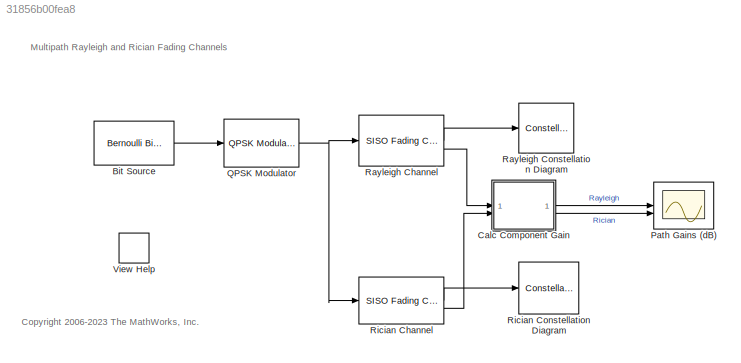
MODEL slx_31856b00fea8
KIND model
CONFIG AbsTol = auto
CONFIG EnableMultiTasking = on
CONFIG FixedStep = auto
CONFIG MaxStep = auto
CONFIG MinStep = auto
CONFIG PreLoadFcn = bitRate = 10e6;\nbitsPerFrame = 2000;\nmaxDopplerShift = 200;\ndelayVector = [0 1 2 4]*2/bitRate;\ngainVector = [0:3]*(-3);\nLOSDopplerShift = 100;\nKFactor = 10;
CONFIG RelTol = 1e-3
CONFIG SampleTimeConstraint = Unconstrained
CONFIG SolverName = FixedStepDiscrete
CONFIG StartTime = 0.0
CONFIG StopTime = 3
BLOCK [Reference] Bit Source  REF=commrandsrc3/Bernoulli Binary
Generator
  SourceBlock = commrandsrc3/Bernoulli Binary\nGenerator
  SourceType = Bernoulli Binary Generator
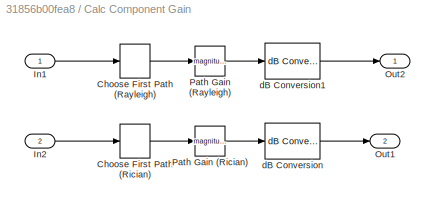
BLOCK [SubSystem] Calc Component Gain
BLOCK [Math] Calc Component Gain/ Path Gain (Rayleigh)
  Operator = magnitude^2
  SignedPower = on
BLOCK [Selector] Calc Component Gain/Choose First Path (Rayleigh)
  IndexOptions = Select all,Index vector (dialog)
  Indices = [1 3],1
  InputPortWidth = 3
  NumberOfDimensions = 2
  OutputSizes = 1,1
BLOCK [Selector] Calc Component Gain/Choose First Path (Rician)
  IndexOptions = Select all,Index vector (dialog)
  Indices = [1 3],1
  InputPortWidth = 3
  NumberOfDimensions = 2
  OutputSizes = 1,1
BLOCK [Inport] Calc Component Gain/In1
BLOCK [Inport] Calc Component Gain/In2
  Port = 2
BLOCK [Outport] Calc Component Gain/Out1
  Port = 2
  VectorParamsAs1DForOutWhenUnconnected = off
BLOCK [Outport] Calc Component Gain/Out2
  VectorParamsAs1DForOutWhenUnconnected = off
BLOCK [Math] Calc Component Gain/Path Gain (Rician)
  Operator = magnitude^2
  SignedPower = on
BLOCK [Reference] Calc Component Gain/dB Conversion  REF=dspmathops/dB Conversion
  SourceBlock = dspmathops/dB Conversion
  SourceType = dB Conversion
BLOCK [Reference] Calc Component Gain/dB Conversion1  REF=dspmathops/dB Conversion
  SourceBlock = dspmathops/dB Conversion
  SourceType = dB Conversion
BLOCK [Scope] Path Gains (dB)
  ActiveDisplayYMaximum = 1.24025
  ActiveDisplayYMinimum = -5.42888
  DefaultConfigurationName = spbscopes.TimeScopeBlockCfg
  Floating = off
  FrameBasedProcessingString = Columns as channels (frame based)
  GraphicalSettings = {"GraphicalSettings":{"LegacySettings":true,"Style":{"Style":{"AxesColor":"[0 0 0]","BackgroundColor":"[0.156862745098039 0.156862745098039 0.156862745098039]","ChannelNames":[""],"ColorOrder":"[1 1 0.0666666666666667;0.0745098039215686 0.623529411764706 1;1 0.411764705882353 0.16078431372549;0.392156862745098 0.831372549019608 0.0745098039215686;0.717647058823529 0.274509803921569 1;0.05882352941...<+422ch>
  MaximizeAxes = Auto
  MultipleDisplayCache = [{"MaxYLimMag":5.42888,"MaxYLimReal":1.24025,"MinYLimMag":0,"MinYLimReal":-5.42888,"PlotAsMagnitudePhase":false,"ShowGrid":true,"ShowLegend":true,"Title":"","YLabel":"Gain (dB)"}]
  NumInputPorts = 2
  ShowLegend = on
  ShowTimeAxisLabel = on
  TimeAxisLabels = All
  TimeSpan = bitsPerFrame/bitRate
  TimeUnits = Metric (based on Time Span)
  UserDataPersistent = on
  WasSavedAsWebScope = on
  WindowPosition = [709 193 560 420]
  YLabel = Gain (dB)
BLOCK [Reference] QPSK Modulator  REF=commdigbbndpm3/QPSK
Modulator
Baseband
  SourceBlock = commdigbbndpm3/QPSK\nModulator\nBaseband
  SourceType = QPSK Modulator Baseband
BLOCK [Reference] Rayleigh Channel  REF=commchan3/SISO Fading Channel
  SourceBlock = commchan3/SISO Fading Channel
  SourceType = SISO Fading Channel
BLOCK [ConstellationDiagram] Rayleigh Constellation Diagram
  AxesLimits = [-3.3 3.315]
  DefaultConfigurationName = comm.scopes.ConstellationDiagramBlockCfg
  GraphicalSettings = {"Style":{"BackgroundColor":[0.1568627450980392,0.1568627450980392,0.1568627450980392],"AxesColor":[0,0,0],"LabelsColor":[0.6862745098039216,0.6862745098039216,0.6862745098039216],"LineStyle":["NONE","NONE"],"LineColor":[[1,1,0.06666666666666667],[1,0,0]],"LineWidth":[1,1],"Marker":[".","+"],"IsRefLine":[false,true],"FontSize":"10"}}
  OpenAtSimulationStart = off
  ScopeFrameLocation = window
  SymbolsToDisplay = bitsPerFrame/2
  SymbolsToDisplaySource = Property
  Tag = ScatterPlot
  Title = Received signal after Rayleigh fading
  WasSavedAsWebScope = on
  WindowPosition = [131.000000,255.000000,480.000000,480.000000,]
  XLimits = [-3.3 3.315]
  YLimits = [-3.3 3.315]
BLOCK [Reference] Rician Channel  REF=commchan3/SISO Fading Channel
  SourceBlock = commchan3/SISO Fading Channel
  SourceType = SISO Fading Channel
BLOCK [ConstellationDiagram] Rician Constellation Diagram
  AxesLimits = [-1.5 1.5]
  DefaultConfigurationName = comm.scopes.ConstellationDiagramBlockCfg
  GraphicalSettings = {"GraphicalSettings":{"Style":{"AxesProperties":"struct","Box":"on","Color":"[0 0 0]","CurrentConfiguration":"extmgr.ConfigurationSet","FontName":"Helvetica","FontSize":"10","FontUnits":"points","FontWeight":"normal","LineColor":"b","MaxXLim":"1.5","MaxYLim":"1.5","MinXLim":"-1.5","MinYLim":"-1.5","OpenScopeAtSimStart":"false","Position":"[576 480 480 480]","Version":"2020b","XColor":"[0.686274509...<+464ch>
  OpenAtSimulationStart = off
  ScopeFrameLocation = window
  SymbolsToDisplay = bitsPerFrame/2
  SymbolsToDisplaySource = Property
  Tag = ScatterPlot
  Title = Received signal after Rician fading
  WasSavedAsWebScope = on
  WindowPosition = [576.000000,480.000000,480.000000,480.000000,]
  XLimits = [-1.5 1.5]
  YLimits = [-1.5 1.5]
BLOCK [CustomCallbackButton] View Help
  Configuration = {"components":[{"name":"BackgroundImageComponent","settings":{"image":{"size":[0,0],"src":"default","srcOrientation":"Right"},"position":[0,0,1,1]}},{"name":"ButtonStateComponent","settings":{"buttonType":"momentary","clickFcn":"showExample('comm\/MultipathFadingChannelSimulinkExample')","onValue":1,"position":[0,0,1,1],"pressDelay":"500","pressFcn":"","repeatInterval":"0","states":[{"horizontalAl...<+1765ch>
  CustomBackgroundColor = {"color":[0.9568627451,0.9568627451,0.9568627451],"show":true}
ANNOTATION (root): <copyright redacted>
ANNOTATION (root): Multipath Rayleigh and Rician Fading Channels
LINE Bit Source:1 -> QPSK Modulator:1
LINE Calc Component Gain/ Path Gain (Rayleigh):1 -> Calc Component Gain/dB Conversion1:1
LINE Calc Component Gain/Choose First Path (Rayleigh):1 -> Calc Component Gain/ Path Gain (Rayleigh):1
LINE Calc Component Gain/Choose First Path (Rician):1 -> Calc Component Gain/Path Gain (Rician):1
LINE Calc Component Gain/In1:1 -> Calc Component Gain/Choose First Path (Rayleigh):1
LINE Calc Component Gain/In2:1 -> Calc Component Gain/Choose First Path (Rician):1
LINE Calc Component Gain/Path Gain (Rician):1 -> Calc Component Gain/dB Conversion:1
LINE Calc Component Gain/dB Conversion1:1 -> Calc Component Gain/Out2:1
LINE Calc Component Gain/dB Conversion:1 -> Calc Component Gain/Out1:1
LINE Calc Component Gain:1 -> Path Gains (dB):1
LINE Calc Component Gain:2 -> Path Gains (dB):2
NET QPSK Modulator:1 -> Rayleigh Channel:1, Rician Channel:1
LINE Rayleigh Channel:1 -> Rayleigh Constellation Diagram:1
LINE Rayleigh Channel:2 -> Calc Component Gain:1
LINE Rician Channel:1 -> Rician Constellation Diagram:1
LINE Rician Channel:2 -> Calc Component Gain:2
note: NET lines group one-source signal fan-out (src -> all destinations, sorted); 1:1 wires keep LINE
